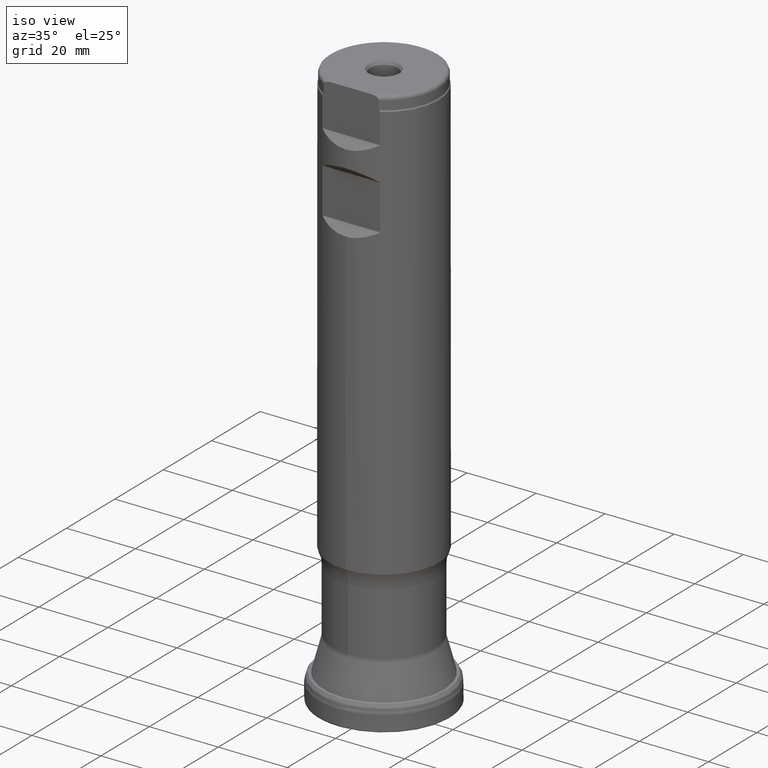
[diagram: clean part render]
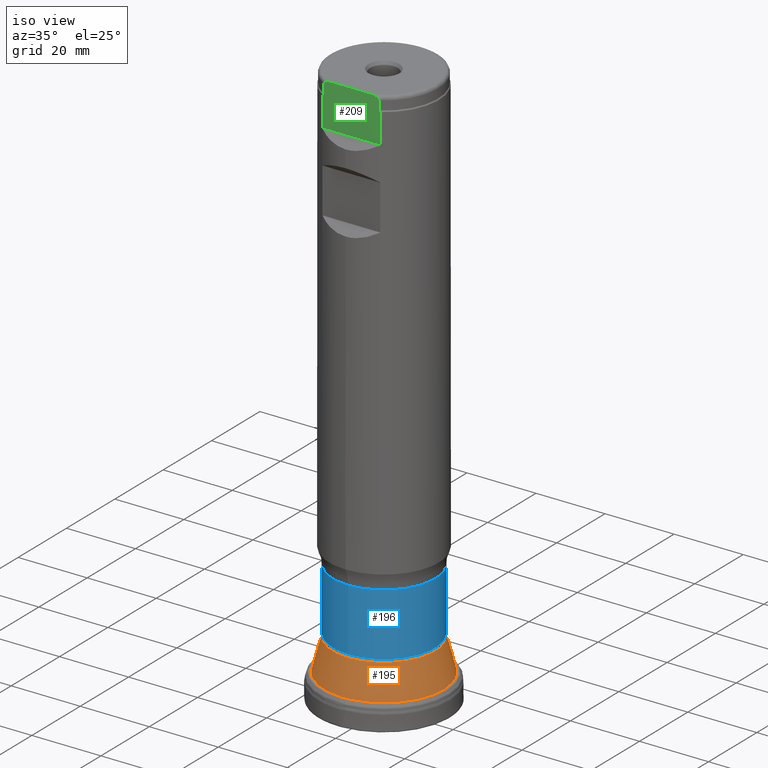
[diagram: same view with three faces highlighted in distinct colors, each labeled with its STEP entity id]
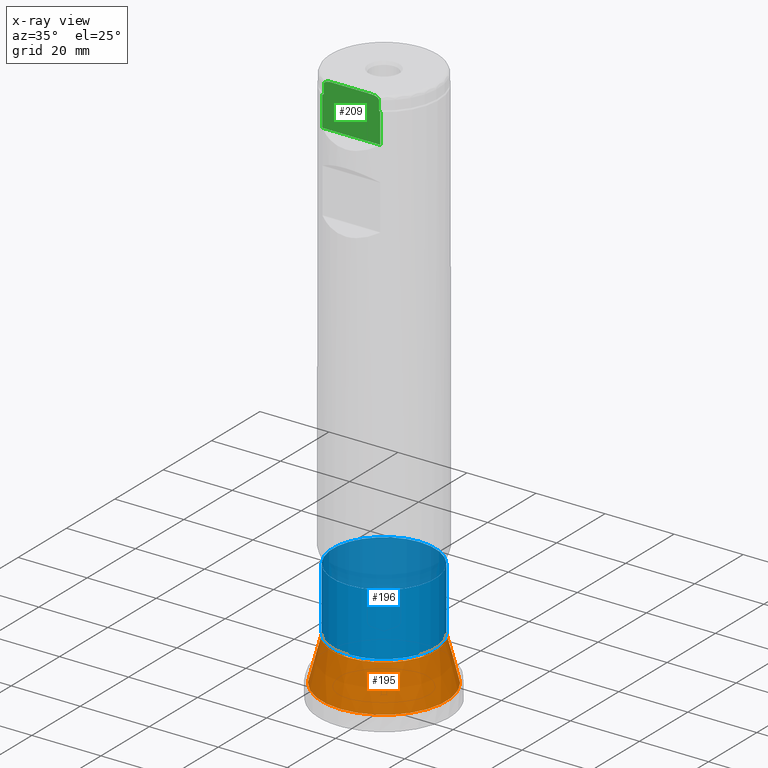
[diagram: x-ray of the same camera — body ghosted, the three highlighted faces saturated]
A machine part, iso view with three faces highlighted in distinct colors.
The next image is the same camera in x-ray (body ghosted, the three faces saturated) — at least one of them is partly hidden behind the body in this view.
Their STEP definitions:

[orange] entity #195 — the highlighted conical surface has half-angle 14.5 deg.
#171=CONICAL_SURFACE('',#836,14.8,14.5);
#195=ADVANCED_FACE('',(#299,#300),#171,.T.);
#258=CIRCLE('',#834,14.8955570788657);
#259=CIRCLE('',#835,18.0741571113152);
#299=FACE_BOUND('',#383,.T.);
#300=FACE_BOUND('',#384,.T.);
#383=EDGE_LOOP('',(#536));
#384=EDGE_LOOP('',(#537));
#536=ORIENTED_EDGE('',*,*,#728,.T.);
#537=ORIENTED_EDGE('',*,*,#729,.T.);
#664=VERTEX_POINT('',#1441);
#665=VERTEX_POINT('',#1443);
#728=EDGE_CURVE('',#664,#664,#258,.T.);
#729=EDGE_CURVE('',#665,#665,#259,.T.);
#834=AXIS2_PLACEMENT_3D('',#1440,#941,#942);
#835=AXIS2_PLACEMENT_3D('',#1442,#943,#944);
#836=AXIS2_PLACEMENT_3D('',#1444,#945,#946);
#941=DIRECTION('',(0.,-1.17145536458252E-15,-1.));
#942=DIRECTION('',(0.,1.,-1.1645912044727E-15));
#943=DIRECTION('',(0.,1.17145536458252E-15,1.));
#944=DIRECTION('',(0.,-1.,1.15173734429306E-15));
#945=DIRECTION('',(0.,-1.17145536458252E-15,-1.));
#946=DIRECTION('',(0.,1.,-1.38312142086188E-15));
#1440=CARTESIAN_POINT('',(0.,1.94431289811617E-14,16.5974134132637));
#1441=CARTESIAN_POINT('',(0.,14.8955570788657,16.5974134132637));
#1442=CARTESIAN_POINT('',(0.,5.04508227003381E-15,4.30667904434562));
#1443=CARTESIAN_POINT('',(0.,-18.0741571113152,4.30667904434564));
#1444=CARTESIAN_POINT('',(0.,1.98759721420003E-14,16.9669052214239));

[blue] entity #196 — the highlighted cylindrical surface (bore or boss wall) has radius 14.8 mm, axis along (0, 0, 1).
#196=ADVANCED_FACE('',(#301,#302),#240,.T.);
#240=CYLINDRICAL_SURFACE('',#839,14.8);
#260=CIRCLE('',#837,14.8);
#261=CIRCLE('',#838,14.8);
#301=FACE_BOUND('',#385,.T.);
#302=FACE_BOUND('',#386,.T.);
#385=EDGE_LOOP('',(#538));
#386=EDGE_LOOP('',(#539));
#538=ORIENTED_EDGE('',*,*,#730,.T.);
#539=ORIENTED_EDGE('',*,*,#731,.T.);
#666=VERTEX_POINT('',#1446);
#667=VERTEX_POINT('',#1448);
#730=EDGE_CURVE('',#666,#666,#260,.T.);
#731=EDGE_CURVE('',#667,#667,#261,.T.);
#837=AXIS2_PLACEMENT_3D('',#1445,#947,#948);
#838=AXIS2_PLACEMENT_3D('',#1447,#949,#950);
#839=AXIS2_PLACEMENT_3D('',#1449,#951,#952);
#947=DIRECTION('',(0.,1.17145536458252E-15,1.));
#948=DIRECTION('',(0.,-1.,1.17211045674109E-15));
#949=DIRECTION('',(0.,-1.17145536458252E-15,-1.));
#950=DIRECTION('',(0.,-1.,9.37688365392869E-16));
#951=DIRECTION('',(0.,1.17145536458252E-15,1.));
#952=DIRECTION('',(0.,-1.,1.17145536458252E-15));
#1445=CARTESIAN_POINT('',(0.,2.0323055977963E-14,17.348553425427));
#1446=CARTESIAN_POINT('',(0.,-14.8,17.3485534254271));
#1447=CARTESIAN_POINT('',(0.,4.15802529875227E-14,35.4945260781155));
#1448=CARTESIAN_POINT('',(0.,-14.8,35.4945260781155));
#1449=CARTESIAN_POINT('',(0.,0.,0.));

[green] entity #209 — the highlighted planar face has unit normal (0, -1, 0).
#164=PLANE('',#857);
#179=FACE_OUTER_BOUND('',#409,.T.);
#209=ADVANCED_FACE('',(#179),#164,.T.);
#409=EDGE_LOOP('',(#562,#563,#564,#565,#566,#567,#568,#569,#570,#571));
#461=LINE('',#1361,#480);
#462=LINE('',#1365,#481);
#463=LINE('',#1398,#482);
#464=LINE('',#1399,#483);
#465=LINE('',#1406,#484);
#466=LINE('',#1474,#485);
#480=VECTOR('',#896,1.);
#481=VECTOR('',#899,1.);
#482=VECTOR('',#910,1.);
#483=VECTOR('',#911,1.);
#484=VECTOR('',#918,1.);
#485=VECTOR('',#987,1.);
#562=ORIENTED_EDGE('',*,*,#737,.T.);
#563=ORIENTED_EDGE('',*,*,#708,.F.);
#564=ORIENTED_EDGE('',*,*,#713,.F.);
#565=ORIENTED_EDGE('',*,*,#715,.F.);
#566=ORIENTED_EDGE('',*,*,#721,.F.);
#567=ORIENTED_EDGE('',*,*,#719,.F.);
#568=ORIENTED_EDGE('',*,*,#720,.F.);
#569=ORIENTED_EDGE('',*,*,#716,.F.);
#570=ORIENTED_EDGE('',*,*,#711,.F.);
#571=ORIENTED_EDGE('',*,*,#706,.F.);
#645=VERTEX_POINT('',#1359);
#647=VERTEX_POINT('',#1362);
#648=VERTEX_POINT('',#1364);
#649=VERTEX_POINT('',#1366);
#651=VERTEX_POINT('',#1387);
#652=VERTEX_POINT('',#1389);
#653=VERTEX_POINT('',#1396);
#654=VERTEX_POINT('',#1397);
#656=VERTEX_POINT('',#1404);
#657=VERTEX_POINT('',#1405);
#706=EDGE_CURVE('',#645,#647,#461,.T.);
#708=EDGE_CURVE('',#648,#649,#462,.T.);
#711=EDGE_CURVE('',#647,#651,#791,.T.);
#713=EDGE_CURVE('',#652,#648,#792,.T.);
#715=EDGE_CURVE('',#654,#652,#463,.T.);
#716=EDGE_CURVE('',#651,#653,#464,.T.);
#719=EDGE_CURVE('',#657,#656,#465,.T.);
#720=EDGE_CURVE('',#653,#657,#793,.T.);
#721=EDGE_CURVE('',#656,#654,#794,.T.);
#737=EDGE_CURVE('',#645,#649,#466,.T.);
#791=B_SPLINE_CURVE_WITH_KNOTS('',3,(#1383,#1384,#1385,#1386),
 .UNSPECIFIED.,.F.,.F.,(4,4),(0.,1.),.UNSPECIFIED.);
#792=B_SPLINE_CURVE_WITH_KNOTS('',3,(#1390,#1391,#1392,#1393),
 .UNSPECIFIED.,.F.,.F.,(4,4),(0.,1.),.UNSPECIFIED.);
#793=B_SPLINE_CURVE_WITH_KNOTS('',3,(#1408,#1409,#1410,#1411,#1412,#1413,
#1414,#1415),.UNSPECIFIED.,.F.,.F.,(4,2,2,4),(0.,0.249999999999999,0.499999999999999,
1.),.UNSPECIFIED.);
#794=B_SPLINE_CURVE_WITH_KNOTS('',3,(#1416,#1417,#1418,#1419,#1420,#1421,
#1422,#1423),.UNSPECIFIED.,.F.,.F.,(4,2,2,4),(0.,0.5,0.75,1.),
 .UNSPECIFIED.);
#857=AXIS2_PLACEMENT_3D('',#1475,#988,#989);
#896=DIRECTION('',(0.,1.17145536458252E-15,1.));
#899=DIRECTION('',(0.,-1.17145536458252E-15,-1.));
#910=DIRECTION('',(0.,-1.17145536458252E-15,-1.));
#911=DIRECTION('',(0.,1.17145536458252E-15,1.));
#918=DIRECTION('',(1.,-1.37230767120917E-30,-1.17145536458252E-15));
#987=DIRECTION('',(1.,-1.37230767120917E-30,-1.17145536458252E-15));
#988=DIRECTION('',(0.,-1.,1.17145536458252E-15));
#989=DIRECTION('',(1.17267306976032E-15,1.17093834628434E-15,1.));
#1359=CARTESIAN_POINT('',(-8.37291264972948,-13.4873999999998,152.524264068712));
#1361=CARTESIAN_POINT('',(-8.37291264972948,-13.4874,1.57998870842703E-14));
#1362=CARTESIAN_POINT('',(-8.37291264972948,-13.4873999999998,161.1));
#1364=CARTESIAN_POINT('',(8.37291264972948,-13.4873999999998,161.1));
#1365=CARTESIAN_POINT('',(8.37291264972948,-13.4874,1.57998870842703E-14));
#1366=CARTESIAN_POINT('',(8.37291264972948,-13.4873999999998,152.524264068712));
#1383=CARTESIAN_POINT('',(-8.37291264972947,-13.4873999999998,161.1));
#1384=CARTESIAN_POINT('',(-8.24537216173961,-13.4873999999998,161.216512233654));
#1385=CARTESIAN_POINT('',(-8.11683755434122,-13.4873999999998,161.332012782716));
#1386=CARTESIAN_POINT('',(-7.98721893026601,-13.4873999999998,161.446410161514));
#1387=CARTESIAN_POINT('',(-7.98721893026602,-13.4873999999998,161.446410161514));
#1389=CARTESIAN_POINT('',(7.98721893026602,-13.4873999999998,161.446410161514));
#1390=CARTESIAN_POINT('',(7.98721893026603,-13.4873999999998,161.446410161514));
#1391=CARTESIAN_POINT('',(8.11685003072467,-13.4873999999998,161.332001771447));
#1392=CARTESIAN_POINT('',(8.24538408682384,-13.4873999999998,161.216501339716));
#1393=CARTESIAN_POINT('',(8.37291264972948,-13.4873999999998,161.1));
#1396=CARTESIAN_POINT('',(-7.9872189302887,-13.4873999999998,164.099999999989));
#1397=CARTESIAN_POINT('',(7.98721893026602,-13.4873999999998,164.1));
#1398=CARTESIAN_POINT('',(7.98721893026602,-13.4874,1.57998870842703E-14));
#1399=CARTESIAN_POINT('',(-7.98721893026602,-13.4874,1.57998870842703E-14));
#1404=CARTESIAN_POINT('',(5.78322282468843,-13.4873999999998,165.1));
#1405=CARTESIAN_POINT('',(-5.78322282468864,-13.4873999999998,165.1));
#1406=CARTESIAN_POINT('',(-17.5,-13.4873999999998,165.1));
#1408=CARTESIAN_POINT('',(-7.98721893026687,-13.4873999999998,164.099999999988));
#1409=CARTESIAN_POINT('',(-7.98721893027205,-13.4873999999998,164.32020277002));
#1410=CARTESIAN_POINT('',(-7.83736774434983,-13.4873999999998,164.515154682752));
#1411=CARTESIAN_POINT('',(-7.48623082979299,-13.4873999999998,164.780139720299));
#1412=CARTESIAN_POINT('',(-7.28172032421563,-13.4873999999998,164.867554950671));
#1413=CARTESIAN_POINT('',(-6.65729293981299,-13.4873999999998,165.0609297127));
#1414=CARTESIAN_POINT('',(-6.21637245039726,-13.4873999999998,165.1));
#1415=CARTESIAN_POINT('',(-5.78322282468864,-13.4873999999998,165.1));
#1416=CARTESIAN_POINT('',(5.78322282468843,-13.4873999999998,165.1));
#1417=CARTESIAN_POINT('',(6.21394869343174,-13.4873999999998,165.1));
#1418=CARTESIAN_POINT('',(6.65580566004194,-13.4873999999998,165.061664403719));
#1419=CARTESIAN_POINT('',(7.28486381477454,-13.4873999999998,164.86644362587));
#1420=CARTESIAN_POINT('',(7.48748729423044,-13.4873999999998,164.779507582041));
#1421=CARTESIAN_POINT('',(7.83842269980531,-13.4873999999998,164.514040424023));
#1422=CARTESIAN_POINT('',(7.98721893026602,-13.4873999999998,164.322383261353));
#1423=CARTESIAN_POINT('',(7.98721893026602,-13.4873999999998,164.1));
#1474=CARTESIAN_POINT('',(-17.5,-13.4873999999998,152.524264068712));
#1475=CARTESIAN_POINT('',(-17.5,-13.4873999999998,165.1));